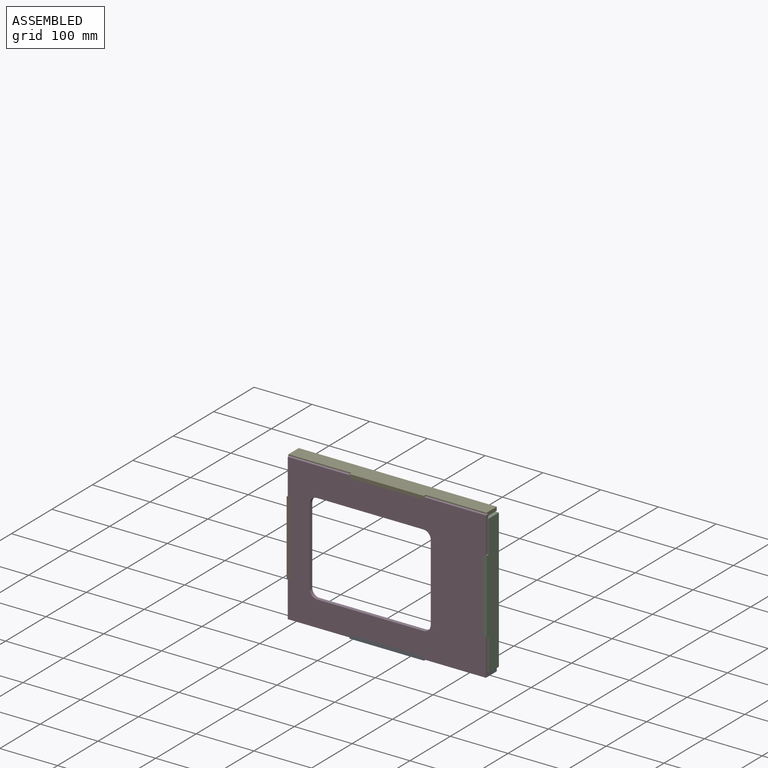
[diagram: assembled view]
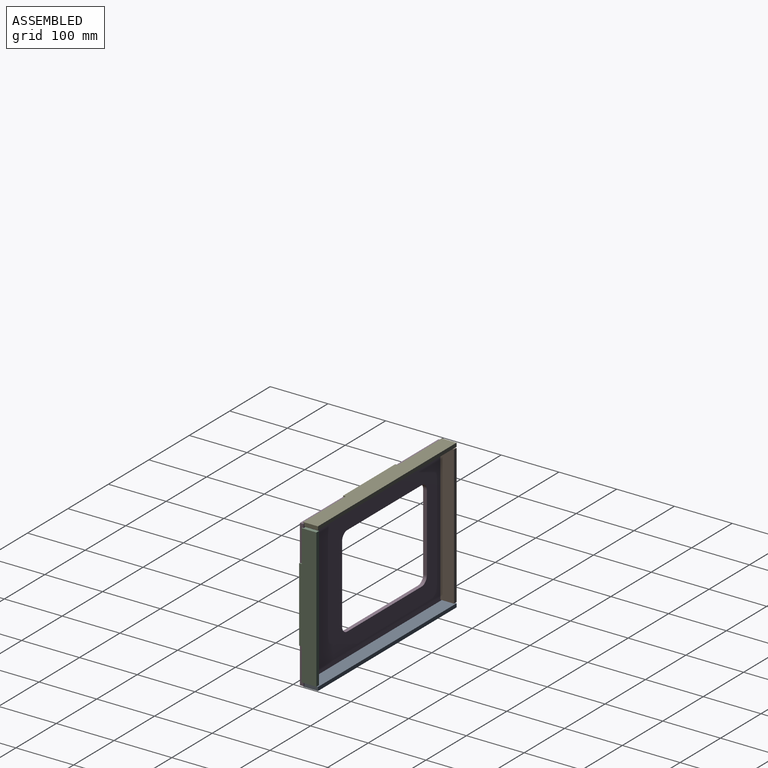
[diagram: assembled view, second angle]
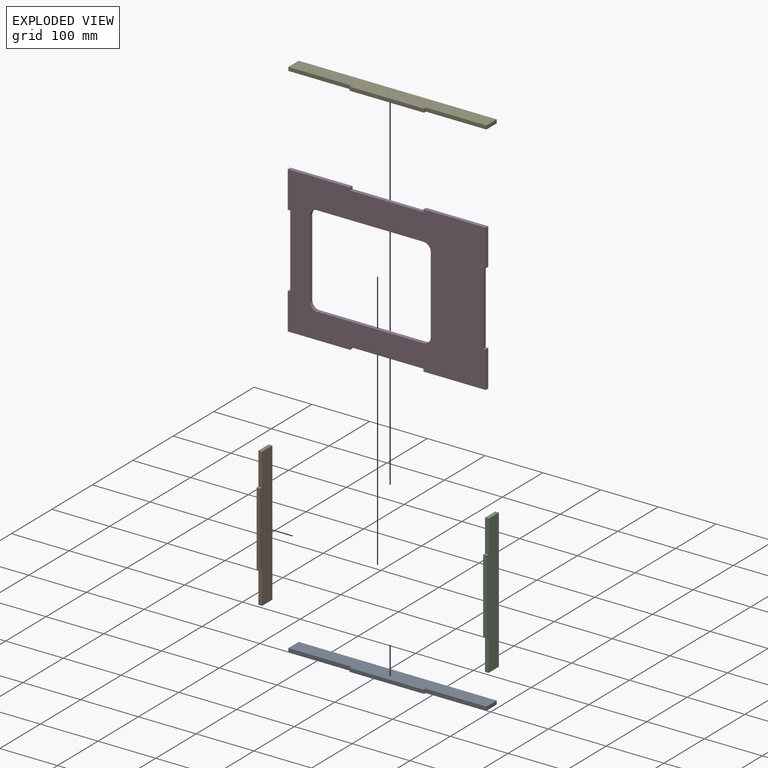
[diagram: exploded view]
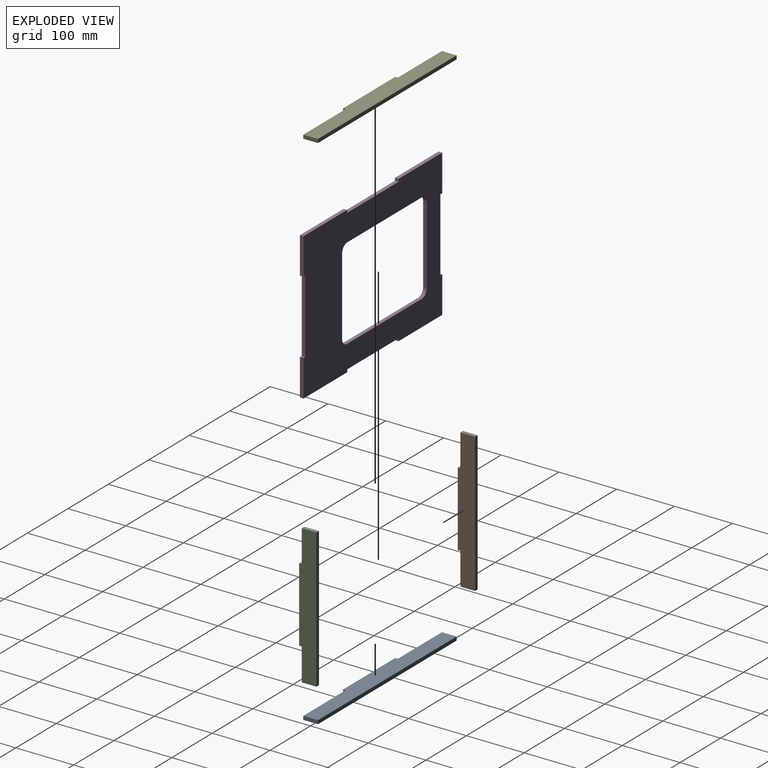
[diagram: exploded view, second angle]
ASSEMBLY  parts=5 mates=4
PART A: 10 faces, bbox 342.9x29.9x6.4 mm
  f0: plane 104.95x6.35mm, normal (0,-1,0), area 666.4mm2, adj f1,f7,f8,f9
  f1: plane 25.4x6.35mm, normal (1,0,0), area 161.3mm2, adj f0,f2,f8,f9
  f2: plane 342.9x6.35mm, normal (0,1,0), area 2177.4mm2, adj f1,f3,f8,f9
  f3: plane 25.4x6.35mm, normal (-1,0,0), area 161.3mm2, adj f2,f4,f8,f9
  f4: plane 108.95x6.35mm, normal (0,-1,0), area 691.8mm2, adj f3,f5,f8,f9
  f5: plane 6.35x4.5mm, normal (-1,0,0), area 28.6mm2, adj f4,f6,f8,f9
  f6: plane 129x6.35mm, normal (0,-1,0), area 819.2mm2, adj f5,f7,f8,f9
  f7: plane 6.35x4.5mm, normal (1,0,0), area 28.6mm2, adj f0,f6,f8,f9
  f8: plane 342.9x29.9mm, normal (0,0,1), area 9290.2mm2, adj f0,f1,f2,f3,f4,f5,f6,f7
  f9: plane 342.9x29.9mm, normal (0,0,-1), area 9290.2mm2, adj f0,f1,f2,f3,f4,f5,f6,f7
PART B: 10 faces, bbox 6.4x29.9x241.3 mm
  f0: plane 25.4x6.35mm, normal (0,0,1), area 161.3mm2, adj f1,f7,f8,f9
  f1: plane 56.15x6.35mm, normal (0,-1,0), area 356.6mm2, adj f0,f2,f8,f9
  f2: plane 6.35x4.5mm, normal (0,0,1), area 28.6mm2, adj f1,f3,f8,f9
  f3: plane 129x6.35mm, normal (0,-1,0), area 819.2mm2, adj f2,f4,f8,f9
  f4: plane 6.35x4.5mm, normal (0,0,-1), area 28.6mm2, adj f3,f5,f8,f9
  f5: plane 56.15x6.35mm, normal (0,-1,0), area 356.6mm2, adj f4,f6,f8,f9
  f6: plane 25.4x6.35mm, normal (0,0,-1), area 161.3mm2, adj f5,f7,f8,f9
  f7: plane 241.3x6.35mm, normal (0,1,0), area 1532.3mm2, adj f0,f6,f8,f9
  f8: plane 241.3x29.9mm, normal (1,0,0), area 6709.5mm2, adj f0,f1,f2,f3,f4,f5,f6,f7
  f9: plane 241.3x29.9mm, normal (-1,0,0), area 6709.5mm2, adj f0,f1,f2,f3,f4,f5,f6,f7
PART C: same geometry as B
PART D: 30 faces, bbox 342.9x6.4x254 mm
  f0: plane 6.35x4.5mm, normal (1,0,0.02), area 28.6mm2, adj f1,f27,f28,f29
  f1: plane 107.95x6.35mm, normal (0,0,1), area 685.5mm2, adj f0,f2,f28,f29
  f2: plane 63.5x6.35mm, normal (-1,0,0), area 403.2mm2, adj f1,f3,f28,f29
  f3: plane 6.35x4.5mm, normal (0,0,-1), area 28.6mm2, adj f2,f4,f28,f29
  f4: plane 127x6.35mm, normal (-1,0,0), area 806.5mm2, adj f3,f5,f28,f29
  f5: plane 6.35x4.5mm, normal (0,0,1), area 28.6mm2, adj f4,f6,f28,f29
  f6: plane 63.5x6.35mm, normal (-1,0,0), area 403.2mm2, adj f5,f7,f28,f29
  f7: plane 107.95x6.35mm, normal (0,0,-1), area 685.5mm2, adj f6,f8,f28,f29
  f8: plane 6.35x4.5mm, normal (1,0,-0.02), area 28.6mm2, adj f7,f9,f28,f29
  f9: plane 127x6.35mm, normal (0,0,-1), area 806.5mm2, adj f8,f10,f28,f29
  f10: plane 6.35x4.5mm, normal (-1,0,0.02), area 28.6mm2, adj f9,f11,f28,f29
  f11: plane 107.95x6.35mm, normal (0,0,-1), area 685.5mm2, adj f10,f12,f28,f29
  f12: plane 63.5x6.35mm, normal (1,0,0), area 403.2mm2, adj f11,f13,f28,f29
  f13: plane 6.35x4.5mm, normal (0,0,1), area 28.6mm2, adj f12,f14,f28,f29
  f14: plane 127x6.35mm, normal (1,0,0), area 806.5mm2, adj f13,f15,f28,f29
  f15: plane 6.35x4.5mm, normal (0,0,-1), area 28.6mm2, adj f14,f16,f28,f29
  f16: plane 63.5x6.35mm, normal (1,0,0), area 403.2mm2, adj f15,f17,f28,f29
  f17: plane 107.95x6.35mm, normal (0,0,1), area 685.5mm2, adj f16,f18,f28,f29
  f18: plane 6.35x4.5mm, normal (-1,0,-0.02), area 28.6mm2, adj f17,f27,f28,f29
  f19: cylinder r=12.7mm len=12.7mm, axis (0,1,0), area 126.7mm2, adj f20,f26,f28,f29
  f20: plane 133.35x6.35mm, normal (-1,0,0), area 846.8mm2, adj f19,f21,f28,f29
  f21: cylinder r=12.7mm len=12.7mm, axis (0,1,0), area 126.7mm2, adj f20,f22,f28,f29
  f22: plane 184.15x6.35mm, normal (0,0,1), area 1169.4mm2, adj f21,f23,f28,f29
  f23: cylinder r=12.7mm len=12.7mm, axis (0,1,0), area 126.7mm2, adj f22,f24,f28,f29
  f24: plane 133.35x6.35mm, normal (1,0,0), area 846.8mm2, adj f23,f25,f28,f29
  f25: cylinder r=12.7mm len=12.7mm, axis (0,1,0), area 126.7mm2, adj f24,f26,f28,f29
  f26: plane 184.15x6.35mm, normal (0,0,-1), area 1169.4mm2, adj f19,f25,f28,f29
  f27: plane 127x6.35mm, normal (0,0,1), area 806.5mm2, adj f0,f18,f28,f29
  f28: plane 342.9x254mm, normal (0,-1,0), area 51683mm2, adj f0,f1,f2,f3,f4,f5,f6,f7
  f29: plane 342.9x254mm, normal (0,1,0), area 51683mm2, adj f0,f1,f2,f3,f4,f5,f6,f7
PART E: same geometry as A
PLACE A t=(129.4,0.93,-248.21)mm
PLACE B t=(-41.98,0.93,-119.36)mm
PLACE C t=(298.27,0.93,-119.36)mm
PLACE D t=(131.32,-9.92,-119.36)mm
PLACE E t=(129.4,0.93,3.14)mm
MATE fastened D.f14 <-> C.f9  axis (1,0,0) through (298.27,-16.27,-119.36)mm
MATE fastened D.f9 <-> A.f8  axis (0,0,-1) through (131.4,-16.27,-241.86)mm
MATE fastened D.f4 <-> B.f8  axis (-1,0,0) through (-35.63,-16.27,-119.36)mm
MATE fastened D.f27 <-> E.f9  axis (0,0,1) through (131.4,-16.27,3.14)mm
